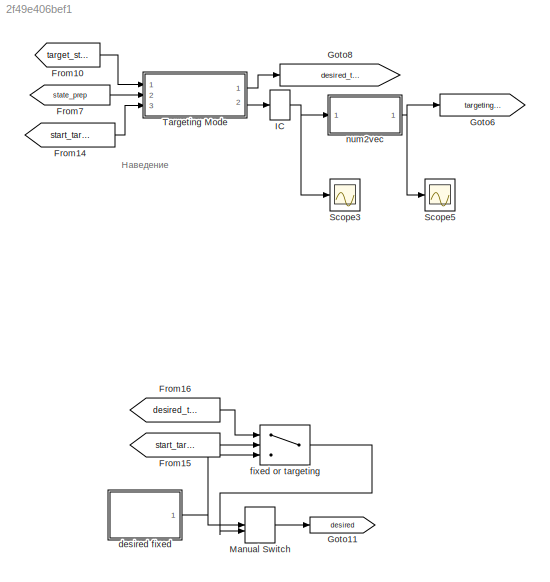
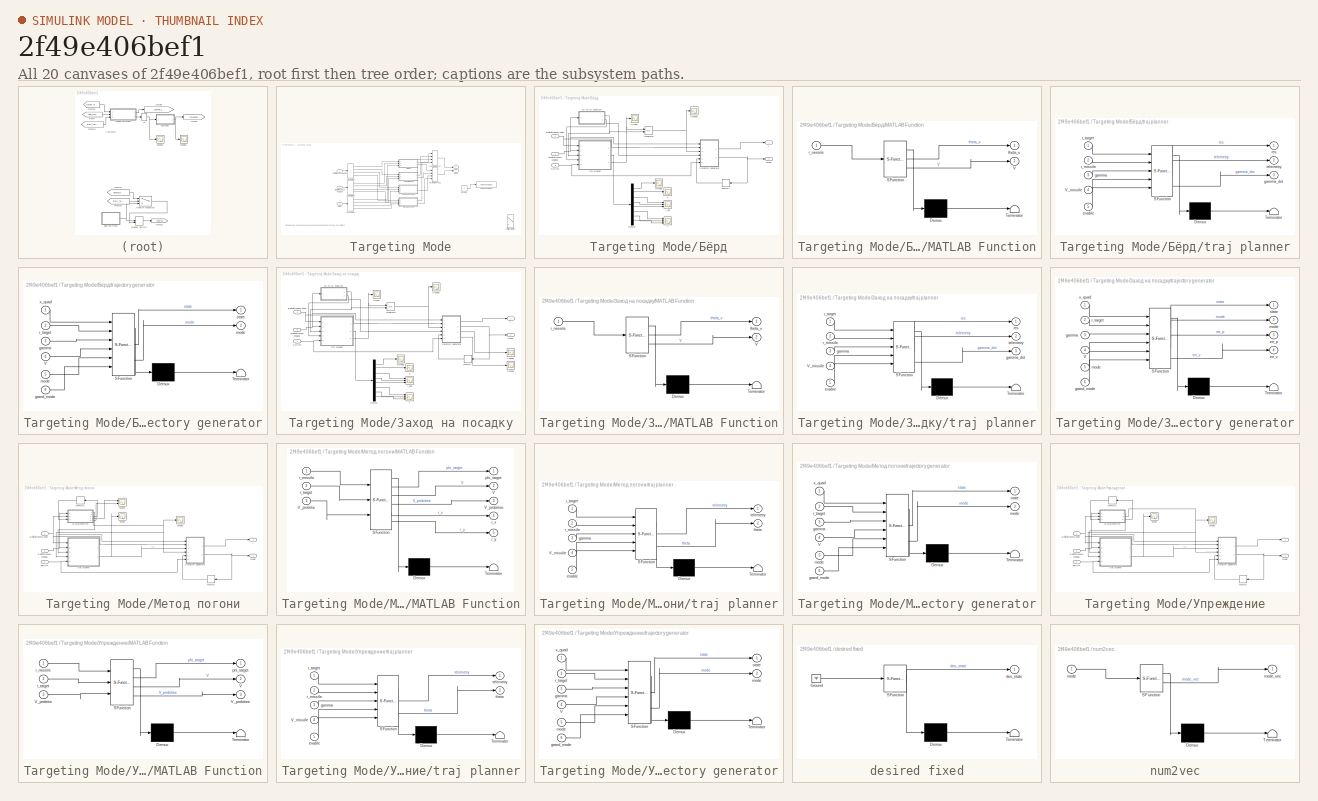
[diagram: thumbnail index - all 20 canvases of the model, root first then tree order]
MODEL slx_2f49e406bef1
KIND model
CONFIG AbsTol = auto
CONFIG EnableMultiTasking = off
CONFIG FixedStep = auto
CONFIG MaxStep = auto
CONFIG MinStep = auto
CONFIG RelTol = 1e-3
CONFIG SampleTimeConstraint = Unconstrained
CONFIG Solver = VariableStepAuto
CONFIG SolverName = VariableStepAuto
CONFIG StartTime = 0.0
CONFIG StopTime = 10.0
BLOCK [From] From10
  GotoTag = target_state
  IconDisplay = Tag and signal name
BLOCK [From] From14
  GotoTag = start_targeting
BLOCK [From] From15
  Commented = on
  GotoTag = start_targeting
BLOCK [From] From16
  Commented = on
  GotoTag = desired_targeting
BLOCK [From] From7
  GotoTag = state_prep
BLOCK [Goto] Goto11
  Commented = on
  GotoTag = desired
BLOCK [Goto] Goto6
  GotoTag = targeting_mode
  TagVisibility = global
BLOCK [Goto] Goto8
  GotoTag = desired_targeting
BLOCK [InitialCondition] IC
  Value = 0
BLOCK [ManualSwitch] Manual Switch
  Commented = on
BLOCK [Scope] Scope3
  Floating = off
  NumInputPorts = 1
  Ports = [1]
  ScopeSpecificationString = Simulink.scopes.TimeScopeBlockCfg('CurrentConfiguration', extmgr.ConfigurationSet(extmgr.Configuration('Core','General UI',true),extmgr.Configuration('Core','Source UI',true),extmgr.Configuration('Sources','WiredSimulink',true,'DataLoggingVariableName','ScopeData1'),extmgr.Configuration('Visuals','Time Domain',true,'SerializedDisplays',{struct('MinYLimReal','-0.75','MaxYLimReal','6.75','YLabelReal...<+1412ch>
BLOCK [Scope] Scope5
  Floating = off
  NumInputPorts = 1
  Ports = [1]
  ScopeSpecificationString = Simulink.scopes.TimeScopeBlockCfg('CurrentConfiguration', extmgr.ConfigurationSet(extmgr.Configuration('Core','General UI',true),extmgr.Configuration('Core','Source UI',true),extmgr.Configuration('Sources','WiredSimulink',true,'DataLoggingVariableName','ScopeData2'),extmgr.Configuration('Visuals','Time Domain',true,'SerializedDisplays',{struct('MinYLimReal','-0.375','MaxYLimReal','3.375','YLabelRe...<+1418ch>
BLOCK [SubSystem] Targeting Mode
  Ports = [3, 2]
  RequestExecContextInheritance = off
BLOCK [Constant] Targeting Mode/Constant
  Commented = on
  Value = 3
BLOCK [MultiPortSwitch] Targeting Mode/Multiport Switch
  Commented = on
  InputSameDT = off
  Inputs = 4
  Ports = [5, 1]
  SaturateOnIntegerOverflow = off
BLOCK [Inport] Targeting Mode/Switch
  Port = 3
BLOCK [ToWorkspace] Targeting Mode/To Workspace
  Commented = on
  FixptAsFi = on
  MaxDataPoints = inf
  Ports = [1]
  SampleTime = -1
  SaveFormat = Timeseries
  VariableName = targeting_method_select
BLOCK [VariantSink] Targeting Mode/Variant Sink
  Ports = [1, 4]
BLOCK [VariantSink] Targeting Mode/Variant Sink1
  Ports = [1, 4]
BLOCK [VariantSink] Targeting Mode/Variant Sink2
  Ports = [1, 4]
BLOCK [VariantSource] Targeting Mode/Variant Source
  Ports = [4, 1]
BLOCK [VariantSource] Targeting Mode/Variant Source1
  Ports = [4, 1]
BLOCK [Outport] Targeting Mode/mode
  Port = 2
BLOCK [Outport] Targeting Mode/y
BLOCK [SubSystem] Targeting Mode/Бёрд
  Ports = [3, 2]
  RequestExecContextInheritance = off
BLOCK [Demux] Targeting Mode/Бёрд/Demux
  Outputs = 8
  Ports = [1, 8]
BLOCK [Integrator] Targeting Mode/Бёрд/Integrator
  InitialConditionSource = external
  Ports = [2, 1]
BLOCK [SubSystem] Targeting Mode/Бёрд/MATLAB Function
  ErrorFcn = Stateflow.Translate.translate
  PermitHierarchicalResolution = ExplicitOnly
  Ports = [1, 2]
  RequestExecContextInheritance = off
  SFBlockType = MATLAB Function
  TreatAsAtomicUnit = on
BLOCK [Demux] Targeting Mode/Бёрд/MATLAB Function/ Demux 
  Outputs = 1
  Ports = [1, 1]
BLOCK [S-Function] Targeting Mode/Бёрд/MATLAB Function/ SFunction 
  EnableBusSupport = on
  FunctionName = sf_sfun
  PortCounts = [1 3]
  Ports = [1, 3]
  SFcnIsStateOwnerBlock = off
  SFunctionDeploymentMode = off
  Tag = Stateflow S-Function 12
BLOCK [Terminator] Targeting Mode/Бёрд/MATLAB Function/ Terminator 
BLOCK [Outport] Targeting Mode/Бёрд/MATLAB Function/V
  Port = 2
BLOCK [Inport] Targeting Mode/Бёрд/MATLAB Function/r_missile
BLOCK [Outport] Targeting Mode/Бёрд/MATLAB Function/theta_v
BLOCK [Memory] Targeting Mode/Бёрд/Memory
BLOCK [Scope] Targeting Mode/Бёрд/Omega
  Floating = off
  NumInputPorts = 1
  Ports = [1]
  ScopeSpecificationString = Simulink.scopes.TimeScopeBlockCfg('CurrentConfiguration', extmgr.ConfigurationSet(extmgr.Configuration('Core','General UI',true),extmgr.Configuration('Core','Source UI',true),extmgr.Configuration('Sources','WiredSimulink',true,'DataLoggingVariableName','ScopeData2'),extmgr.Configuration('Visuals','Time Domain',true,'SerializedDisplays',{struct('MinYLimReal','-0.46271','MaxYLimReal','0.24386','YLab...<+1434ch>
BLOCK [Scope] Targeting Mode/Бёрд/Scope
  Floating = off
  NumInputPorts = 1
  Ports = [1]
  ScopeSpecificationString = Simulink.scopes.TimeScopeBlockCfg('CurrentConfiguration', extmgr.ConfigurationSet(extmgr.Configuration('Core','General UI',true),extmgr.Configuration('Core','Source UI',true),extmgr.Configuration('Sources','WiredSimulink',true,'DataLoggingVariableName','ScopeData1'),extmgr.Configuration('Visuals','Time Domain',true,'SerializedDisplays',{struct('MinYLimReal','-0.77265','MaxYLimReal','0.21052','YLab...<+1426ch>
BLOCK [Scope] Targeting Mode/Бёрд/Scope5
  Floating = off
  NumInputPorts = 1
  Ports = [1]
  ScopeSpecificationString = Simulink.scopes.TimeScopeBlockCfg('CurrentConfiguration', extmgr.ConfigurationSet(extmgr.Configuration('Core','General UI',true),extmgr.Configuration('Core','Source UI',true),extmgr.Configuration('Sources','WiredSimulink',true,'DataLoggingVariableName','ScopeData8'),extmgr.Configuration('Visuals','Time Domain',true,'SerializedDisplays',{struct('MinYLimReal','-1.36049','MaxYLimReal','8.66917','YLab...<+1414ch>
BLOCK [Inport] Targeting Mode/Бёрд/Switch
  Port = 3
BLOCK [Scope] Targeting Mode/Бёрд/a
  Floating = off
  NumInputPorts = 1
  Ports = [1]
  ScopeSpecificationString = Simulink.scopes.TimeScopeBlockCfg('CurrentConfiguration', extmgr.ConfigurationSet(extmgr.Configuration('Core','General UI',true),extmgr.Configuration('Core','Source UI',true),extmgr.Configuration('Sources','WiredSimulink',true,'DataLoggingVariableName','ScopeData3'),extmgr.Configuration('Visuals','Time Domain',true,'SerializedDisplays',{struct('MinYLimReal','-7.58537','MaxYLimReal','29.06304','YLa...<+1445ch>
BLOCK [Scope] Targeting Mode/Бёрд/l
  Floating = off
  NumInputPorts = 3
  Ports = [3]
  ScopeSpecificationString = Simulink.scopes.TimeScopeBlockCfg('CurrentConfiguration', extmgr.ConfigurationSet(extmgr.Configuration('Core','General UI',true),extmgr.Configuration('Core','Source UI',true),extmgr.Configuration('Sources','WiredSimulink',true,'DataLoggingVariableName','ScopeData5'),extmgr.Configuration('Visuals','Time Domain',true,'SerializedDisplays',{struct('MinYLimReal','-47.99961','MaxYLimReal','131.98264','Y...<+1464ch>
BLOCK [Scope] Targeting Mode/Бёрд/l_dot
  Floating = off
  NumInputPorts = 3
  Ports = [3]
  ScopeSpecificationString = Simulink.scopes.TimeScopeBlockCfg('CurrentConfiguration', extmgr.ConfigurationSet(extmgr.Configuration('Core','General UI',true),extmgr.Configuration('Core','Source UI',true),extmgr.Configuration('Sources','WiredSimulink',true,'DataLoggingVariableName','ScopeData4'),extmgr.Configuration('Visuals','Time Domain',true,'SerializedDisplays',{struct('MinYLimReal','-12.39562','MaxYLimReal','8.73266','YLa...<+1458ch>
BLOCK [Outport] Targeting Mode/Бёрд/mode
  Port = 2
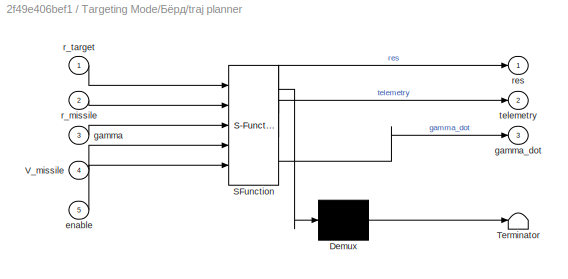
BLOCK [SubSystem] Targeting Mode/Бёрд/traj planner
  ErrorFcn = Stateflow.Translate.translate
  PermitHierarchicalResolution = ExplicitOnly
  Ports = [5, 3]
  RequestExecContextInheritance = off
  SFBlockType = MATLAB Function
  TreatAsAtomicUnit = on
BLOCK [Demux] Targeting Mode/Бёрд/traj planner/ Demux 
  Outputs = 1
  Ports = [1, 1]
BLOCK [S-Function] Targeting Mode/Бёрд/traj planner/ SFunction 
  EnableBusSupport = on
  FunctionName = sf_sfun
  PortCounts = [5 4]
  Ports = [5, 4]
  SFcnIsStateOwnerBlock = off
  SFunctionDeploymentMode = off
  Tag = Stateflow S-Function 14
BLOCK [Terminator] Targeting Mode/Бёрд/traj planner/ Terminator 
BLOCK [Inport] Targeting Mode/Бёрд/traj planner/V_missile
  Port = 4
BLOCK [Inport] Targeting Mode/Бёрд/traj planner/enable
  Port = 5
BLOCK [Inport] Targeting Mode/Бёрд/traj planner/gamma
  Port = 3
BLOCK [Outport] Targeting Mode/Бёрд/traj planner/gamma_dot
  Port = 3
BLOCK [Inport] Targeting Mode/Бёрд/traj planner/r_missile
  Port = 2
BLOCK [Inport] Targeting Mode/Бёрд/traj planner/r_target
BLOCK [Outport] Targeting Mode/Бёрд/traj planner/res
BLOCK [Outport] Targeting Mode/Бёрд/traj planner/telemetry
  Port = 2
BLOCK [SubSystem] Targeting Mode/Бёрд/trajectory generator
  ErrorFcn = Stateflow.Translate.translate
  PermitHierarchicalResolution = ExplicitOnly
  Ports = [6, 2]
  RequestExecContextInheritance = off
  SFBlockType = MATLAB Function
  TreatAsAtomicUnit = on
BLOCK [Demux] Targeting Mode/Бёрд/trajectory generator/ Demux 
  Outputs = 1
  Ports = [1, 1]
BLOCK [S-Function] Targeting Mode/Бёрд/trajectory generator/ SFunction 
  EnableBusSupport = on
  FunctionName = sf_sfun
  Parameters = MAV
  PortCounts = [6 3]
  Ports = [6, 3]
  SFcnIsStateOwnerBlock = off
  SFunctionDeploymentMode = off
  Tag = Stateflow S-Function 15
BLOCK [Terminator] Targeting Mode/Бёрд/trajectory generator/ Terminator 
BLOCK [Inport] Targeting Mode/Бёрд/trajectory generator/V
  Port = 4
BLOCK [Inport] Targeting Mode/Бёрд/trajectory generator/gamma
  Port = 3
BLOCK [Inport] Targeting Mode/Бёрд/trajectory generator/grand_mode
  Port = 6
BLOCK [Outport] Targeting Mode/Бёрд/trajectory generator/mode
  Port = 2
BLOCK [Inport] Targeting Mode/Бёрд/trajectory generator/mode 
  Port = 5
BLOCK [Inport] Targeting Mode/Бёрд/trajectory generator/r_target
  Port = 2
BLOCK [Outport] Targeting Mode/Бёрд/trajectory generator/state
BLOCK [Inport] Targeting Mode/Бёрд/trajectory generator/x_quad
BLOCK [Outport] Targeting Mode/Бёрд/y
BLOCK [Inport] Targeting Mode/Бёрд/Диффурочки квадра
  Port = 2
BLOCK [Inport] Targeting Mode/Бёрд/Диффурочки цели 
BLOCK [Inport] Targeting Mode/Диффурочки квадра
  Port = 2
BLOCK [Inport] Targeting Mode/Диффурочки цели 
BLOCK [SubSystem] Targeting Mode/Заход на посадку
  Ports = [3, 2]
  RequestExecContextInheritance = off
BLOCK [Demux] Targeting Mode/Заход на посадку/Demux
  Outputs = 8
  Ports = [1, 8]
BLOCK [Integrator] Targeting Mode/Заход на посадку/Integrator
  InitialConditionSource = external
  Ports = [2, 1]
BLOCK [SubSystem] Targeting Mode/Заход на посадку/MATLAB Function
  ErrorFcn = Stateflow.Translate.translate
  PermitHierarchicalResolution = ExplicitOnly
  Ports = [1, 2]
  RequestExecContextInheritance = off
  SFBlockType = MATLAB Function
  TreatAsAtomicUnit = on
BLOCK [Demux] Targeting Mode/Заход на посадку/MATLAB Function/ Demux 
  Outputs = 1
  Ports = [1, 1]
BLOCK [S-Function] Targeting Mode/Заход на посадку/MATLAB Function/ SFunction 
  EnableBusSupport = on
  FunctionName = sf_sfun
  PortCounts = [1 3]
  Ports = [1, 3]
  SFcnIsStateOwnerBlock = off
  SFunctionDeploymentMode = off
  Tag = Stateflow S-Function 7
BLOCK [Terminator] Targeting Mode/Заход на посадку/MATLAB Function/ Terminator 
BLOCK [Outport] Targeting Mode/Заход на посадку/MATLAB Function/V
  Port = 2
BLOCK [Inport] Targeting Mode/Заход на посадку/MATLAB Function/r_missile
BLOCK [Outport] Targeting Mode/Заход на посадку/MATLAB Function/theta_v
BLOCK [Memory] Targeting Mode/Заход на посадку/Memory
BLOCK [Scope] Targeting Mode/Заход на посадку/Omega
  Floating = off
  NumInputPorts = 1
  Ports = [1]
  ScopeSpecificationString = Simulink.scopes.TimeScopeBlockCfg('CurrentConfiguration', extmgr.ConfigurationSet(extmgr.Configuration('Core','General UI',true),extmgr.Configuration('Core','Source UI',true),extmgr.Configuration('Sources','WiredSimulink',true,'DataLoggingVariableName','ScopeData2'),extmgr.Configuration('Visuals','Time Domain',true,'SerializedDisplays',{struct('MinYLimReal','-0.46271','MaxYLimReal','0.24386','YLab...<+1434ch>
BLOCK [Scope] Targeting Mode/Заход на посадку/Scope
  Floating = off
  NumInputPorts = 1
  Ports = [1]
  ScopeSpecificationString = Simulink.scopes.TimeScopeBlockCfg('CurrentConfiguration', extmgr.ConfigurationSet(extmgr.Configuration('Core','General UI',true),extmgr.Configuration('Core','Source UI',true),extmgr.Configuration('Sources','WiredSimulink',true,'DataLoggingVariableName','ScopeData1'),extmgr.Configuration('Visuals','Time Domain',true,'SerializedDisplays',{struct('MinYLimReal','-10.92265','MaxYLimReal','32.18737','YL...<+1455ch>
BLOCK [Scope] Targeting Mode/Заход на посадку/Scope1
  Floating = off
  NumInputPorts = 1
  Ports = [1]
  ScopeSpecificationString = Simulink.scopes.TimeScopeBlockCfg('CurrentConfiguration', extmgr.ConfigurationSet(extmgr.Configuration('Core','General UI',true),extmgr.Configuration('Core','Source UI',true),extmgr.Configuration('Sources','WiredSimulink',true,'DataLoggingVariableName','ScopeData10'),extmgr.Configuration('Visuals','Time Domain',true,'SerializedDisplays',{struct('MinYLimReal','-46.92461','MaxYLimReal','122.30771','...<+1528ch>
BLOCK [Scope] Targeting Mode/Заход на посадку/Scope2
  Floating = off
  NumInputPorts = 1
  Ports = [1]
  ScopeSpecificationString = Simulink.scopes.TimeScopeBlockCfg('CurrentConfiguration', extmgr.ConfigurationSet(extmgr.Configuration('Core','General UI',true),extmgr.Configuration('Core','Source UI',true),extmgr.Configuration('Sources','WiredSimulink',true,'DataLoggingVariableName','ScopeData11'),extmgr.Configuration('Visuals','Time Domain',true,'SerializedDisplays',{struct('MinYLimReal','-12.39562','MaxYLimReal','8.73266','YL...<+1522ch>
BLOCK [Scope] Targeting Mode/Заход на посадку/Scope5
  Floating = off
  NumInputPorts = 1
  Ports = [1]
  ScopeSpecificationString = Simulink.scopes.TimeScopeBlockCfg('CurrentConfiguration', extmgr.ConfigurationSet(extmgr.Configuration('Core','General UI',true),extmgr.Configuration('Core','Source UI',true),extmgr.Configuration('Sources','WiredSimulink',true,'DataLoggingVariableName','ScopeData8'),extmgr.Configuration('Visuals','Time Domain',true,'SerializedDisplays',{struct('MinYLimReal','-1.45131','MaxYLimReal','10.04305','YLa...<+1441ch>
BLOCK [Inport] Targeting Mode/Заход на посадку/Switch
  Port = 3
BLOCK [Scope] Targeting Mode/Заход на посадку/a
  Floating = off
  NumInputPorts = 1
  Ports = [1]
  ScopeSpecificationString = Simulink.scopes.TimeScopeBlockCfg('CurrentConfiguration', extmgr.ConfigurationSet(extmgr.Configuration('Core','General UI',true),extmgr.Configuration('Core','Source UI',true),extmgr.Configuration('Sources','WiredSimulink',true,'DataLoggingVariableName','ScopeData3'),extmgr.Configuration('Visuals','Time Domain',true,'SerializedDisplays',{struct('MinYLimReal','-7.58537','MaxYLimReal','29.06304','YLa...<+1445ch>
BLOCK [Scope] Targeting Mode/Заход на посадку/l
  Floating = off
  NumInputPorts = 3
  Ports = [3]
  ScopeSpecificationString = Simulink.scopes.TimeScopeBlockCfg('CurrentConfiguration', extmgr.ConfigurationSet(extmgr.Configuration('Core','General UI',true),extmgr.Configuration('Core','Source UI',true),extmgr.Configuration('Sources','WiredSimulink',true,'DataLoggingVariableName','ScopeData5'),extmgr.Configuration('Visuals','Time Domain',true,'SerializedDisplays',{struct('MinYLimReal','-46.81137','MaxYLimReal','131.28853','Y...<+1464ch>
BLOCK [Scope] Targeting Mode/Заход на посадку/l_dot
  Floating = off
  NumInputPorts = 3
  Ports = [3]
  ScopeSpecificationString = Simulink.scopes.TimeScopeBlockCfg('CurrentConfiguration', extmgr.ConfigurationSet(extmgr.Configuration('Core','General UI',true),extmgr.Configuration('Core','Source UI',true),extmgr.Configuration('Sources','WiredSimulink',true,'DataLoggingVariableName','ScopeData4'),extmgr.Configuration('Visuals','Time Domain',true,'SerializedDisplays',{struct('MinYLimReal','-12.39562','MaxYLimReal','8.73266','YLa...<+1458ch>
BLOCK [Outport] Targeting Mode/Заход на посадку/mode
  Port = 2
BLOCK [SubSystem] Targeting Mode/Заход на посадку/traj planner
  ErrorFcn = Stateflow.Translate.translate
  PermitHierarchicalResolution = ExplicitOnly
  Ports = [5, 3]
  RequestExecContextInheritance = off
  SFBlockType = MATLAB Function
  TreatAsAtomicUnit = on
BLOCK [Demux] Targeting Mode/Заход на посадку/traj planner/ Demux 
  Outputs = 1
  Ports = [1, 1]
BLOCK [S-Function] Targeting Mode/Заход на посадку/traj planner/ SFunction 
  EnableBusSupport = on
  FunctionName = sf_sfun
  PortCounts = [5 4]
  Ports = [5, 4]
  SFcnIsStateOwnerBlock = off
  SFunctionDeploymentMode = off
  Tag = Stateflow S-Function 9
BLOCK [Terminator] Targeting Mode/Заход на посадку/traj planner/ Terminator 
BLOCK [Inport] Targeting Mode/Заход на посадку/traj planner/V_missile
  Port = 4
BLOCK [Inport] Targeting Mode/Заход на посадку/traj planner/enable
  Port = 5
BLOCK [Inport] Targeting Mode/Заход на посадку/traj planner/gamma
  Port = 3
BLOCK [Outport] Targeting Mode/Заход на посадку/traj planner/gamma_dot
  Port = 3
BLOCK [Inport] Targeting Mode/Заход на посадку/traj planner/r_missile
  Port = 2
BLOCK [Inport] Targeting Mode/Заход на посадку/traj planner/r_target
BLOCK [Outport] Targeting Mode/Заход на посадку/traj planner/res
BLOCK [Outport] Targeting Mode/Заход на посадку/traj planner/telemetry
  Port = 2
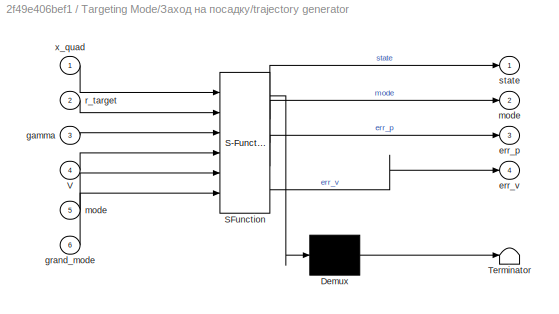
BLOCK [SubSystem] Targeting Mode/Заход на посадку/trajectory generator
  ErrorFcn = Stateflow.Translate.translate
  PermitHierarchicalResolution = ExplicitOnly
  Ports = [6, 4]
  RequestExecContextInheritance = off
  SFBlockType = MATLAB Function
  TreatAsAtomicUnit = on
BLOCK [Demux] Targeting Mode/Заход на посадку/trajectory generator/ Demux 
  Outputs = 1
  Ports = [1, 1]
BLOCK [S-Function] Targeting Mode/Заход на посадку/trajectory generator/ SFunction 
  EnableBusSupport = on
  FunctionName = sf_sfun
  Parameters = MAV
  PortCounts = [6 5]
  Ports = [6, 5]
  SFcnIsStateOwnerBlock = off
  SFunctionDeploymentMode = off
  Tag = Stateflow S-Function 10
BLOCK [Terminator] Targeting Mode/Заход на посадку/trajectory generator/ Terminator 
BLOCK [Inport] Targeting Mode/Заход на посадку/trajectory generator/V
  Port = 4
BLOCK [Outport] Targeting Mode/Заход на посадку/trajectory generator/err_p
  Port = 3
BLOCK [Outport] Targeting Mode/Заход на посадку/trajectory generator/err_v
  Port = 4
BLOCK [Inport] Targeting Mode/Заход на посадку/trajectory generator/gamma
  Port = 3
BLOCK [Inport] Targeting Mode/Заход на посадку/trajectory generator/grand_mode
  Port = 6
BLOCK [Outport] Targeting Mode/Заход на посадку/trajectory generator/mode
  Port = 2
BLOCK [Inport] Targeting Mode/Заход на посадку/trajectory generator/mode 
  Port = 5
BLOCK [Inport] Targeting Mode/Заход на посадку/trajectory generator/r_target
  Port = 2
BLOCK [Outport] Targeting Mode/Заход на посадку/trajectory generator/state
BLOCK [Inport] Targeting Mode/Заход на посадку/trajectory generator/x_quad
BLOCK [Outport] Targeting Mode/Заход на посадку/y
BLOCK [Inport] Targeting Mode/Заход на посадку/Диффурочки квадра
  Port = 2
BLOCK [Inport] Targeting Mode/Заход на посадку/Диффурочки цели 
BLOCK [SubSystem] Targeting Mode/Метод погони
  Ports = [3, 2]
  RequestExecContextInheritance = off
BLOCK [SubSystem] Targeting Mode/Метод погони/MATLAB Function
  ErrorFcn = Stateflow.Translate.translate
  PermitHierarchicalResolution = ExplicitOnly
  Ports = [3, 5]
  RequestExecContextInheritance = off
  SFBlockType = MATLAB Function
  TreatAsAtomicUnit = on
BLOCK [Demux] Targeting Mode/Метод погони/MATLAB Function/ Demux 
  Outputs = 1
  Ports = [1, 1]
BLOCK [S-Function] Targeting Mode/Метод погони/MATLAB Function/ SFunction 
  EnableBusSupport = on
  FunctionName = sf_sfun
  PortCounts = [3 6]
  Ports = [3, 6]
  SFcnIsStateOwnerBlock = off
  SFunctionDeploymentMode = off
  Tag = Stateflow S-Function 8
BLOCK [Terminator] Targeting Mode/Метод погони/MATLAB Function/ Terminator 
BLOCK [Outport] Targeting Mode/Метод погони/MATLAB Function/V
  Port = 2
BLOCK [Inport] Targeting Mode/Метод погони/MATLAB Function/V_probitia
  Port = 3
BLOCK [Outport] Targeting Mode/Метод погони/MATLAB Function/V_probitiee
  Port = 3
BLOCK [Outport] Targeting Mode/Метод погони/MATLAB Function/phi_target
BLOCK [Inport] Targeting Mode/Метод погони/MATLAB Function/r_missile
BLOCK [Inport] Targeting Mode/Метод погони/MATLAB Function/r_target
  Port = 2
BLOCK [Outport] Targeting Mode/Метод погони/MATLAB Function/r_x
  Port = 4
BLOCK [Outport] Targeting Mode/Метод погони/MATLAB Function/r_y
  Port = 5
BLOCK [Memory] Targeting Mode/Метод погони/Memory
BLOCK [Memory] Targeting Mode/Метод погони/Memory1
BLOCK [Scope] Targeting Mode/Метод погони/Scope
  Floating = off
  NumInputPorts = 1
  Ports = [1]
  ScopeSpecificationString = Simulink.scopes.TimeScopeBlockCfg('CurrentConfiguration', extmgr.ConfigurationSet(extmgr.Configuration('Core','General UI',true),extmgr.Configuration('Core','Source UI',true),extmgr.Configuration('Sources','WiredSimulink',true,'DataLoggingVariableName','ScopeData1'),extmgr.Configuration('Visuals','Time Domain',true,'SerializedDisplays',{struct('MinYLimReal','-3.51285','MaxYLimReal','0.39005','YLab...<+1436ch>
BLOCK [Scope] Targeting Mode/Метод погони/Scope1
  Floating = off
  NumInputPorts = 1
  Ports = [1]
  ScopeSpecificationString = Simulink.scopes.TimeScopeBlockCfg('CurrentConfiguration', extmgr.ConfigurationSet(extmgr.Configuration('Core','General UI',true),extmgr.Configuration('Core','Source UI',true),extmgr.Configuration('Sources','WiredSimulink',true,'DataLoggingVariableName','ScopeData2'),extmgr.Configuration('Visuals','Time Domain',true,'SerializedDisplays',{struct('MinYLimReal','-1.24969','MaxYLimReal','11.24719','YLa...<+1448ch>
BLOCK [Scope] Targeting Mode/Метод погони/Scope2
  Floating = off
  NumInputPorts = 2
  Ports = [2]
  ScopeSpecificationString = Simulink.scopes.TimeScopeBlockCfg('CurrentConfiguration', extmgr.ConfigurationSet(extmgr.Configuration('Core','General UI',true),extmgr.Configuration('Core','Source UI',true),extmgr.Configuration('Sources','WiredSimulink',true,'DataLoggingVariableName','ScopeData3'),extmgr.Configuration('Visuals','Time Domain',true,'SerializedDisplays',{struct('MinYLimReal','-45.05386','MaxYLimReal','105.48478','Y...<+1484ch>
BLOCK [Inport] Targeting Mode/Метод погони/Switch
  Port = 3
BLOCK [Outport] Targeting Mode/Метод погони/mode
  Port = 2
BLOCK [SubSystem] Targeting Mode/Метод погони/traj planner
  ErrorFcn = Stateflow.Translate.translate
  PermitHierarchicalResolution = ExplicitOnly
  Ports = [5, 2]
  RequestExecContextInheritance = off
  SFBlockType = MATLAB Function
  TreatAsAtomicUnit = on
BLOCK [Demux] Targeting Mode/Метод погони/traj planner/ Demux 
  Outputs = 1
  Ports = [1, 1]
BLOCK [S-Function] Targeting Mode/Метод погони/traj planner/ SFunction 
  EnableBusSupport = on
  FunctionName = sf_sfun
  PortCounts = [5 3]
  Ports = [5, 3]
  SFcnIsStateOwnerBlock = off
  SFunctionDeploymentMode = off
  Tag = Stateflow S-Function 13
BLOCK [Terminator] Targeting Mode/Метод погони/traj planner/ Terminator 
BLOCK [Inport] Targeting Mode/Метод погони/traj planner/V_missile
  Port = 4
BLOCK [Inport] Targeting Mode/Метод погони/traj planner/enable
  Port = 5
BLOCK [Inport] Targeting Mode/Метод погони/traj planner/gamma
  Port = 3
BLOCK [Inport] Targeting Mode/Метод погони/traj planner/r_missile
  Port = 2
BLOCK [Inport] Targeting Mode/Метод погони/traj planner/r_target
BLOCK [Outport] Targeting Mode/Метод погони/traj planner/telemetry
BLOCK [Outport] Targeting Mode/Метод погони/traj planner/theta
  Port = 2
BLOCK [SubSystem] Targeting Mode/Метод погони/trajectory generator
  ErrorFcn = Stateflow.Translate.translate
  PermitHierarchicalResolution = ExplicitOnly
  Ports = [6, 2]
  RequestExecContextInheritance = off
  SFBlockType = MATLAB Function
  TreatAsAtomicUnit = on
BLOCK [Demux] Targeting Mode/Метод погони/trajectory generator/ Demux 
  Outputs = 1
  Ports = [1, 1]
BLOCK [S-Function] Targeting Mode/Метод погони/trajectory generator/ SFunction 
  EnableBusSupport = on
  FunctionName = sf_sfun
  Parameters = MAV
  PortCounts = [6 3]
  Ports = [6, 3]
  SFcnIsStateOwnerBlock = off
  SFunctionDeploymentMode = off
  Tag = Stateflow S-Function 17
BLOCK [Terminator] Targeting Mode/Метод погони/trajectory generator/ Terminator 
BLOCK [Inport] Targeting Mode/Метод погони/trajectory generator/V
  Port = 4
BLOCK [Inport] Targeting Mode/Метод погони/trajectory generator/gamma
  Port = 3
BLOCK [Inport] Targeting Mode/Метод погони/trajectory generator/grand_mode
  Port = 6
BLOCK [Outport] Targeting Mode/Метод погони/trajectory generator/mode
  Port = 2
BLOCK [Inport] Targeting Mode/Метод погони/trajectory generator/mode 
  Port = 5
BLOCK [Inport] Targeting Mode/Метод погони/trajectory generator/r_target
  Port = 2
BLOCK [Outport] Targeting Mode/Метод погони/trajectory generator/state
BLOCK [Inport] Targeting Mode/Метод погони/trajectory generator/x_quad
BLOCK [Outport] Targeting Mode/Метод погони/y
BLOCK [Inport] Targeting Mode/Метод погони/Диффурочки квадра
  Port = 2
BLOCK [Inport] Targeting Mode/Метод погони/Диффурочки цели 
BLOCK [SubSystem] Targeting Mode/Упреждение
  Ports = [3, 2]
  RequestExecContextInheritance = off
BLOCK [SubSystem] Targeting Mode/Упреждение/MATLAB Function
  ErrorFcn = Stateflow.Translate.translate
  PermitHierarchicalResolution = ExplicitOnly
  Ports = [3, 3]
  RequestExecContextInheritance = off
  SFBlockType = MATLAB Function
  TreatAsAtomicUnit = on
BLOCK [Demux] Targeting Mode/Упреждение/MATLAB Function/ Demux 
  Outputs = 1
  Ports = [1, 1]
BLOCK [S-Function] Targeting Mode/Упреждение/MATLAB Function/ SFunction 
  EnableBusSupport = on
  FunctionName = sf_sfun
  PortCounts = [3 4]
  Ports = [3, 4]
  SFcnIsStateOwnerBlock = off
  SFunctionDeploymentMode = off
  Tag = Stateflow S-Function 16
BLOCK [Terminator] Targeting Mode/Упреждение/MATLAB Function/ Terminator 
BLOCK [Outport] Targeting Mode/Упреждение/MATLAB Function/V
  Port = 2
BLOCK [Inport] Targeting Mode/Упреждение/MATLAB Function/V_probitia
  Port = 3
BLOCK [Outport] Targeting Mode/Упреждение/MATLAB Function/V_probitiee
  Port = 3
BLOCK [Outport] Targeting Mode/Упреждение/MATLAB Function/phi_target
BLOCK [Inport] Targeting Mode/Упреждение/MATLAB Function/r_missile
BLOCK [Inport] Targeting Mode/Упреждение/MATLAB Function/r_target
  Port = 2
BLOCK [Memory] Targeting Mode/Упреждение/Memory
BLOCK [Memory] Targeting Mode/Упреждение/Memory1
BLOCK [Scope] Targeting Mode/Упреждение/Scope
  Floating = off
  NumInputPorts = 1
  Ports = [1]
  ScopeSpecificationString = Simulink.scopes.TimeScopeBlockCfg('CurrentConfiguration', extmgr.ConfigurationSet(extmgr.Configuration('Core','General UI',true),extmgr.Configuration('Core','Source UI',true),extmgr.Configuration('Sources','WiredSimulink',true,'DataLoggingVariableName','ScopeData1'),extmgr.Configuration('Visuals','Time Domain',true,'SerializedDisplays',{struct('MinYLimReal','-0.43311','MaxYLimReal','0.43485','YLab...<+1430ch>
BLOCK [Scope] Targeting Mode/Упреждение/Scope1
  Floating = off
  NumInputPorts = 1
  Ports = [1]
  ScopeSpecificationString = Simulink.scopes.TimeScopeBlockCfg('CurrentConfiguration', extmgr.ConfigurationSet(extmgr.Configuration('Core','General UI',true),extmgr.Configuration('Core','Source UI',true),extmgr.Configuration('Sources','WiredSimulink',true,'DataLoggingVariableName','ScopeData9'),extmgr.Configuration('Visuals','Time Domain',true,'SerializedDisplays',{struct('MinYLimReal','-1.24969','MaxYLimReal','11.24719','YLa...<+1448ch>
BLOCK [Inport] Targeting Mode/Упреждение/Switch
  Port = 3
BLOCK [Outport] Targeting Mode/Упреждение/mode
  Port = 2
BLOCK [SubSystem] Targeting Mode/Упреждение/traj planner
  ErrorFcn = Stateflow.Translate.translate
  PermitHierarchicalResolution = ExplicitOnly
  Ports = [5, 2]
  RequestExecContextInheritance = off
  SFBlockType = MATLAB Function
  TreatAsAtomicUnit = on
BLOCK [Demux] Targeting Mode/Упреждение/traj planner/ Demux 
  Outputs = 1
  Ports = [1, 1]
BLOCK [S-Function] Targeting Mode/Упреждение/traj planner/ SFunction 
  EnableBusSupport = on
  FunctionName = sf_sfun
  PortCounts = [5 3]
  Ports = [5, 3]
  SFcnIsStateOwnerBlock = off
  SFunctionDeploymentMode = off
  Tag = Stateflow S-Function 18
BLOCK [Terminator] Targeting Mode/Упреждение/traj planner/ Terminator 
BLOCK [Inport] Targeting Mode/Упреждение/traj planner/V_missile
  Port = 4
BLOCK [Inport] Targeting Mode/Упреждение/traj planner/enable
  Port = 5
BLOCK [Inport] Targeting Mode/Упреждение/traj planner/gamma
  Port = 3
BLOCK [Inport] Targeting Mode/Упреждение/traj planner/r_missile
  Port = 2
BLOCK [Inport] Targeting Mode/Упреждение/traj planner/r_target
BLOCK [Outport] Targeting Mode/Упреждение/traj planner/telemetry
BLOCK [Outport] Targeting Mode/Упреждение/traj planner/theta
  Port = 2
BLOCK [SubSystem] Targeting Mode/Упреждение/trajectory generator
  ErrorFcn = Stateflow.Translate.translate
  PermitHierarchicalResolution = ExplicitOnly
  Ports = [6, 2]
  RequestExecContextInheritance = off
  SFBlockType = MATLAB Function
  TreatAsAtomicUnit = on
BLOCK [Demux] Targeting Mode/Упреждение/trajectory generator/ Demux 
  Outputs = 1
  Ports = [1, 1]
BLOCK [S-Function] Targeting Mode/Упреждение/trajectory generator/ SFunction 
  EnableBusSupport = on
  FunctionName = sf_sfun
  Parameters = MAV
  PortCounts = [6 3]
  Ports = [6, 3]
  SFcnIsStateOwnerBlock = off
  SFunctionDeploymentMode = off
  Tag = Stateflow S-Function 19
BLOCK [Terminator] Targeting Mode/Упреждение/trajectory generator/ Terminator 
BLOCK [Inport] Targeting Mode/Упреждение/trajectory generator/V
  Port = 4
BLOCK [Inport] Targeting Mode/Упреждение/trajectory generator/gamma
  Port = 3
BLOCK [Inport] Targeting Mode/Упреждение/trajectory generator/grand_mode
  Port = 6
BLOCK [Outport] Targeting Mode/Упреждение/trajectory generator/mode
  Port = 2
BLOCK [Inport] Targeting Mode/Упреждение/trajectory generator/mode 
  Port = 5
BLOCK [Inport] Targeting Mode/Упреждение/trajectory generator/r_target
  Port = 2
BLOCK [Outport] Targeting Mode/Упреждение/trajectory generator/state
BLOCK [Inport] Targeting Mode/Упреждение/trajectory generator/x_quad
BLOCK [Outport] Targeting Mode/Упреждение/y
BLOCK [Inport] Targeting Mode/Упреждение/Диффурочки квадра
  Port = 2
BLOCK [Inport] Targeting Mode/Упреждение/Диффурочки цели 
BLOCK [SubSystem] desired fixed
  Commented = on
  ErrorFcn = Stateflow.Translate.translate
  PermitHierarchicalResolution = ExplicitOnly
  Ports = [0, 1]
  RequestExecContextInheritance = off
  SFBlockType = MATLAB Function
  TreatAsAtomicUnit = on
BLOCK [Demux] desired fixed/ Demux 
  Outputs = 1
  Ports = [1, 1]
BLOCK [Ground] desired fixed/ Ground 
BLOCK [S-Function] desired fixed/ SFunction 
  EnableBusSupport = on
  FunctionName = sf_sfun
  Parameters = MAV
  PortCounts = [1 2]
  Ports = [1, 2]
  SFcnIsStateOwnerBlock = off
  SFunctionDeploymentMode = off
  Tag = Stateflow S-Function 6
BLOCK [Terminator] desired fixed/ Terminator 
BLOCK [Outport] desired fixed/des_state
BLOCK [Switch] fixed or targeting
  Commented = on
  Criteria = u2 > Threshold
  InputSameDT = off
  SaturateOnIntegerOverflow = off
BLOCK [SubSystem] num2vec
  ErrorFcn = Stateflow.Translate.translate
  PermitHierarchicalResolution = ExplicitOnly
  Ports = [1, 1]
  RequestExecContextInheritance = off
  SFBlockType = MATLAB Function
  TreatAsAtomicUnit = on
BLOCK [Demux] num2vec/ Demux 
  Outputs = 1
  Ports = [1, 1]
BLOCK [S-Function] num2vec/ SFunction 
  EnableBusSupport = on
  FunctionName = sf_sfun
  PortCounts = [1 2]
  Ports = [1, 2]
  SFcnIsStateOwnerBlock = off
  SFunctionDeploymentMode = off
  Tag = Stateflow S-Function 1
BLOCK [Terminator] num2vec/ Terminator 
BLOCK [Inport] num2vec/mode
BLOCK [Outport] num2vec/mode_vec
ANNOTATION (root): Наведение
ANNOTATION Targeting Mode: Переменная-переключатель инициализирована в aerosonde_parameters
LINE From10:1 -> Targeting Mode:1
LINE From14:1 -> Targeting Mode:3
LINE From15:1 -> fixed or targeting:2
LINE From16:1 -> fixed or targeting:1
LINE From7:1 -> Targeting Mode:2
NET IC:1 -> Scope3:1, num2vec:1
LINE Manual Switch:1 -> Goto11:1
LINE Targeting Mode/Constant:1 -> Targeting Mode/To Workspace:1
LINE Targeting Mode/Switch:1 -> Targeting Mode/Variant Sink1:1
LINE Targeting Mode/Variant Sink1:1 -> Targeting Mode/Бёрд:3
LINE Targeting Mode/Variant Sink1:2 -> Targeting Mode/Упреждение:3
LINE Targeting Mode/Variant Sink1:3 -> Targeting Mode/Заход на посадку:3
LINE Targeting Mode/Variant Sink1:4 -> Targeting Mode/Метод погони:3
LINE Targeting Mode/Variant Sink2:1 -> Targeting Mode/Бёрд:2
LINE Targeting Mode/Variant Sink2:2 -> Targeting Mode/Упреждение:2
LINE Targeting Mode/Variant Sink2:3 -> Targeting Mode/Заход на посадку:2
LINE Targeting Mode/Variant Sink2:4 -> Targeting Mode/Метод погони:2
LINE Targeting Mode/Variant Sink:1 -> Targeting Mode/Бёрд:1
LINE Targeting Mode/Variant Sink:2 -> Targeting Mode/Упреждение:1
LINE Targeting Mode/Variant Sink:3 -> Targeting Mode/Заход на посадку:1
LINE Targeting Mode/Variant Sink:4 -> Targeting Mode/Метод погони:1
LINE Targeting Mode/Variant Source1:1 -> Targeting Mode/mode:1
LINE Targeting Mode/Variant Source:1 -> Targeting Mode/y:1
LINE Targeting Mode/Бёрд/Demux:1 -> Targeting Mode/Бёрд/Omega:1
LINE Targeting Mode/Бёрд/Demux:2 -> Targeting Mode/Бёрд/a:1
LINE Targeting Mode/Бёрд/Demux:3 -> Targeting Mode/Бёрд/l_dot:1
LINE Targeting Mode/Бёрд/Demux:4 -> Targeting Mode/Бёрд/l_dot:2
LINE Targeting Mode/Бёрд/Demux:5 -> Targeting Mode/Бёрд/l_dot:3
LINE Targeting Mode/Бёрд/Demux:6 -> Targeting Mode/Бёрд/l:1
LINE Targeting Mode/Бёрд/Demux:7 -> Targeting Mode/Бёрд/l:2
LINE Targeting Mode/Бёрд/Demux:8 -> Targeting Mode/Бёрд/l:3
NET Targeting Mode/Бёрд/Integrator:1 -> Targeting Mode/Бёрд/Scope5:1, Targeting Mode/Бёрд/trajectory generator:3
NET Targeting Mode/Бёрд/MATLAB Function:1 -> Targeting Mode/Бёрд/Integrator:2, Targeting Mode/Бёрд/traj planner:3
NET Targeting Mode/Бёрд/MATLAB Function:2 -> Targeting Mode/Бёрд/traj planner:4, Targeting Mode/Бёрд/trajectory generator:4
LINE Targeting Mode/Бёрд/Memory:1 -> Targeting Mode/Бёрд/trajectory generator:5
NET Targeting Mode/Бёрд/Switch:1 -> Targeting Mode/Бёрд/traj planner:5, Targeting Mode/Бёрд/trajectory generator:6
LINE Targeting Mode/Бёрд/traj planner:2 -> Targeting Mode/Бёрд/Demux:1
NET Targeting Mode/Бёрд/traj planner:3 -> Targeting Mode/Бёрд/Integrator:1, Targeting Mode/Бёрд/Scope:1
LINE Targeting Mode/Бёрд/trajectory generator:1 -> Targeting Mode/Бёрд/y:1
NET Targeting Mode/Бёрд/trajectory generator:2 -> Targeting Mode/Бёрд/Memory:1, Targeting Mode/Бёрд/mode:1
NET Targeting Mode/Бёрд/Диффурочки квадра:1 -> Targeting Mode/Бёрд/MATLAB Function:1, Targeting Mode/Бёрд/traj planner:2, Targeting Mode/Бёрд/trajectory generator:1
NET Targeting Mode/Бёрд/Диффурочки цели :1 -> Targeting Mode/Бёрд/traj planner:1, Targeting Mode/Бёрд/trajectory generator:2
LINE Targeting Mode/Бёрд:1 -> Targeting Mode/Variant Source:1
LINE Targeting Mode/Бёрд:2 -> Targeting Mode/Variant Source1:1
LINE Targeting Mode/Диффурочки квадра:1 -> Targeting Mode/Variant Sink2:1
LINE Targeting Mode/Диффурочки цели :1 -> Targeting Mode/Variant Sink:1
LINE Targeting Mode/Заход на посадку/Demux:1 -> Targeting Mode/Заход на посадку/Omega:1
LINE Targeting Mode/Заход на посадку/Demux:2 -> Targeting Mode/Заход на посадку/a:1
LINE Targeting Mode/Заход на посадку/Demux:3 -> Targeting Mode/Заход на посадку/l_dot:1
LINE Targeting Mode/Заход на посадку/Demux:4 -> Targeting Mode/Заход на посадку/l_dot:2
LINE Targeting Mode/Заход на посадку/Demux:5 -> Targeting Mode/Заход на посадку/l_dot:3
LINE Targeting Mode/Заход на посадку/Demux:6 -> Targeting Mode/Заход на посадку/l:1
LINE Targeting Mode/Заход на посадку/Demux:7 -> Targeting Mode/Заход на посадку/l:2
LINE Targeting Mode/Заход на посадку/Demux:8 -> Targeting Mode/Заход на посадку/l:3
NET Targeting Mode/Заход на посадку/Integrator:1 -> Targeting Mode/Заход на посадку/Scope5:1, Targeting Mode/Заход на посадку/trajectory generator:3
NET Targeting Mode/Заход на посадку/MATLAB Function:1 -> Targeting Mode/Заход на посадку/Integrator:2, Targeting Mode/Заход на посадку/traj planner:3
NET Targeting Mode/Заход на посадку/MATLAB Function:2 -> Targeting Mode/Заход на посадку/traj planner:4, Targeting Mode/Заход на посадку/trajectory generator:4
LINE Targeting Mode/Заход на посадку/Memory:1 -> Targeting Mode/Заход на посадку/trajectory generator:5
NET Targeting Mode/Заход на посадку/Switch:1 -> Targeting Mode/Заход на посадку/traj planner:5, Targeting Mode/Заход на посадку/trajectory generator:6
LINE Targeting Mode/Заход на посадку/traj planner:2 -> Targeting Mode/Заход на посадку/Demux:1
NET Targeting Mode/Заход на посадку/traj planner:3 -> Targeting Mode/Заход на посадку/Integrator:1, Targeting Mode/Заход на посадку/Scope:1
LINE Targeting Mode/Заход на посадку/trajectory generator:1 -> Targeting Mode/Заход на посадку/y:1
NET Targeting Mode/Заход на посадку/trajectory generator:2 -> Targeting Mode/Заход на посадку/Memory:1, Targeting Mode/Заход на посадку/mode:1
LINE Targeting Mode/Заход на посадку/trajectory generator:3 -> Targeting Mode/Заход на посадку/Scope1:1
LINE Targeting Mode/Заход на посадку/trajectory generator:4 -> Targeting Mode/Заход на посадку/Scope2:1
NET Targeting Mode/Заход на посадку/Диффурочки квадра:1 -> Targeting Mode/Заход на посадку/MATLAB Function:1, Targeting Mode/Заход на посадку/traj planner:2, Targeting Mode/Заход на посадку/trajectory generator:1
NET Targeting Mode/Заход на посадку/Диффурочки цели :1 -> Targeting Mode/Заход на посадку/traj planner:1, Targeting Mode/Заход на посадку/trajectory generator:2
LINE Targeting Mode/Заход на посадку:1 -> Targeting Mode/Variant Source:3
LINE Targeting Mode/Заход на посадку:2 -> Targeting Mode/Variant Source1:3
LINE Targeting Mode/Метод погони/MATLAB Function:1 -> Targeting Mode/Метод погони/traj planner:3
NET Targeting Mode/Метод погони/MATLAB Function:2 -> Targeting Mode/Метод погони/Scope1:1, Targeting Mode/Метод погони/traj planner:4, Targeting Mode/Метод погони/trajectory generator:4
LINE Targeting Mode/Метод погони/MATLAB Function:3 -> Targeting Mode/Метод погони/Memory1:1
LINE Targeting Mode/Метод погони/MATLAB Function:4 -> Targeting Mode/Метод погони/Scope2:1
LINE Targeting Mode/Метод погони/MATLAB Function:5 -> Targeting Mode/Метод погони/Scope2:2
LINE Targeting Mode/Метод погони/Memory1:1 -> Targeting Mode/Метод погони/MATLAB Function:3
LINE Targeting Mode/Метод погони/Memory:1 -> Targeting Mode/Метод погони/trajectory generator:5
NET Targeting Mode/Метод погони/Switch:1 -> Targeting Mode/Метод погони/traj planner:5, Targeting Mode/Метод погони/trajectory generator:6
NET Targeting Mode/Метод погони/traj planner:2 -> Targeting Mode/Метод погони/Scope:1, Targeting Mode/Метод погони/trajectory generator:3
LINE Targeting Mode/Метод погони/trajectory generator:1 -> Targeting Mode/Метод погони/y:1
NET Targeting Mode/Метод погони/trajectory generator:2 -> Targeting Mode/Метод погони/Memory:1, Targeting Mode/Метод погони/mode:1
NET Targeting Mode/Метод погони/Диффурочки квадра:1 -> Targeting Mode/Метод погони/MATLAB Function:1, Targeting Mode/Метод погони/traj planner:2, Targeting Mode/Метод погони/trajectory generator:1
NET Targeting Mode/Метод погони/Диффурочки цели :1 -> Targeting Mode/Метод погони/MATLAB Function:2, Targeting Mode/Метод погони/traj planner:1, Targeting Mode/Метод погони/trajectory generator:2
LINE Targeting Mode/Метод погони:1 -> Targeting Mode/Variant Source:4
LINE Targeting Mode/Метод погони:2 -> Targeting Mode/Variant Source1:4
LINE Targeting Mode/Упреждение/MATLAB Function:1 -> Targeting Mode/Упреждение/traj planner:3
NET Targeting Mode/Упреждение/MATLAB Function:2 -> Targeting Mode/Упреждение/Scope1:1, Targeting Mode/Упреждение/traj planner:4, Targeting Mode/Упреждение/trajectory generator:4
LINE Targeting Mode/Упреждение/MATLAB Function:3 -> Targeting Mode/Упреждение/Memory1:1
LINE Targeting Mode/Упреждение/Memory1:1 -> Targeting Mode/Упреждение/MATLAB Function:3
LINE Targeting Mode/Упреждение/Memory:1 -> Targeting Mode/Упреждение/trajectory generator:5
NET Targeting Mode/Упреждение/Switch:1 -> Targeting Mode/Упреждение/traj planner:5, Targeting Mode/Упреждение/trajectory generator:6
NET Targeting Mode/Упреждение/traj planner:2 -> Targeting Mode/Упреждение/Scope:1, Targeting Mode/Упреждение/trajectory generator:3
LINE Targeting Mode/Упреждение/trajectory generator:1 -> Targeting Mode/Упреждение/y:1
NET Targeting Mode/Упреждение/trajectory generator:2 -> Targeting Mode/Упреждение/Memory:1, Targeting Mode/Упреждение/mode:1
NET Targeting Mode/Упреждение/Диффурочки квадра:1 -> Targeting Mode/Упреждение/MATLAB Function:1, Targeting Mode/Упреждение/traj planner:2, Targeting Mode/Упреждение/trajectory generator:1
NET Targeting Mode/Упреждение/Диффурочки цели :1 -> Targeting Mode/Упреждение/MATLAB Function:2, Targeting Mode/Упреждение/traj planner:1, Targeting Mode/Упреждение/trajectory generator:2
LINE Targeting Mode/Упреждение:1 -> Targeting Mode/Variant Source:2
LINE Targeting Mode/Упреждение:2 -> Targeting Mode/Variant Source1:2
LINE Targeting Mode:1 -> Goto8:1
LINE Targeting Mode:2 -> IC:1
NET desired fixed:1 -> Manual Switch:1, fixed or targeting:3
LINE fixed or targeting:1 -> Manual Switch:2
NET num2vec:1 -> Goto6:1, Scope5:1
note: NET lines group one-source signal fan-out (src -> all destinations, sorted); 1:1 wires keep LINE
CHART Targeting Mode/Бёрд/traj planner states=1 transitions=1
  STATE_LABEL 'eML_blk_kernel()'
  STATE_LABEL 'SCRIPT:\nfunction [res, telemetry, gamma_dot] = fcn(r_target, r_missile, gamma, V_missile, enable)\n[res, telemetry, gamma_dot] = targeting_beard(r_target(1:3), r_target(4:6), r_target(7:9),...\n                                            r_missile(1:3), r_missile(4:6), r_missile(10:12), ...\n                                            gamma, V_missile, r_missile(8), enable);\n'
CHART Targeting Mode/Бёрд/trajectory generator states=1 transitions=1
  STATE_LABEL 'eML_blk_kernel()'
  STATE_LABEL 'SCRIPT:\nfunction [state, mode] = fcn(x_quad, r_target, gamma, V, mode, grand_mode, MAV)\n    state = zeros(3,3);\n%     state(:,1) = r_target(1:3);\n%     mode = [0; 0];\n    \n    if grand_mode == 0\n        mode = 0;\n    else\n    if abs(r_target(1) - x_quad(1)) > 3 && abs(r_target(2) - x_quad(2)) > 3 && (mode == 0 || mode == 2)\n        mode = 2;\n        v_x = V*cos(gamma);\n        v_y = V*sin(gamma);\n...<+1149ch>'
CHART Targeting Mode/Упреждение/MATLAB Function states=1 transitions=1
  STATE_LABEL 'eML_blk_kernel()'
  STATE_LABEL 'SCRIPT:\nfunction [phi_target, V, V_probitiee] = fcn(r_missile, r_target, V_probitia)\n\n    r_x = r_target(1) - r_missile(1);\n    r_y = r_target(2) - r_missile(2);\n    \n    phi_target = atan2(r_y, r_x);\n    \n    V = 10; \n    l = sqrt(r_x^2 + r_y^2);\n    L_treshold = 10;\n%     if l < L_treshold\n%         if V_probitia == 0\n%             vx = r_missile(4);\n%             vy = r_missile(5);\n%           ...<+130ch>'
CHART Targeting Mode/Метод погони/trajectory generator states=1 transitions=1
  STATE_LABEL 'eML_blk_kernel()'
  STATE_LABEL 'SCRIPT:\nfunction [state, mode] = fcn(x_quad, r_target, gamma, V, mode, grand_mode, MAV)\n    state = zeros(3,3);\n%     state(:,1) = r_target(1:3);\n%     mode = [0; 0];\n\n    \n    \n    if grand_mode == 0\n        mode = 0;\n    else\n    if abs(r_target(1) - x_quad(1)) > 3 && abs(r_target(2) - x_quad(2)) > 3 && (mode == 0 || mode == 2)\n        mode = 2;\n        v_x = V*cos(gamma);\n        v_y = V*sin(ga...<+984ch>'
CHART Targeting Mode/Упреждение/traj planner states=1 transitions=1
  STATE_LABEL 'eML_blk_kernel()'
  STATE_LABEL 'SCRIPT:\nfunction [ telemetry, theta] = fcn(r_target, r_missile, gamma, V_missile, enable)\n[telemetry, theta] = targeting_forestalling(r_target(1:3), r_target(4:6), r_target(7:9),...\n                                            r_missile(1:3), r_missile(4:6), r_missile(10:12), ...\n                                            gamma, V_missile, r_missile(8), enable, deg2rad(10));\n'
CHART Targeting Mode/Упреждение/trajectory generator states=1 transitions=1
  STATE_LABEL 'eML_blk_kernel()'
  STATE_LABEL 'SCRIPT:\nfunction [state, mode] = fcn(x_quad, r_target, gamma, V, mode, grand_mode, MAV)\n    state = zeros(3,3);\n%     state(:,1) = r_target(1:3);\n%     mode = [0; 0];\n\n    \n    \n    if grand_mode == 0\n        mode = 0;\n    else\n    if abs(r_target(1) - x_quad(1)) > 3 && abs(r_target(2) - x_quad(2)) > 3 && (mode == 0 || mode == 2)\n        mode = 2;\n        v_x = V*cos(gamma);\n        v_y = V*sin(ga...<+984ch>'
CHART num2vec states=1 transitions=1
  STATE_LABEL 'eML_blk_kernel()'
  STATE_LABEL "SCRIPT:\nfunction mode_vec = fcn(mode)\nmode_vec = [0 0]';\nswitch round(mode)\n    case 0\n        mode_vec = [0 0]';\n    case 2\n        mode_vec = [1 1]';\n    case 3\n        mode_vec = [2 1]';\n    case 4\n        mode_vec = [1 2]';\n    case 5\n        mode_vec = [2 2]';\n    case 6\n        mode_vec = [2 3]';\n    case 7\n        mode_vec = [-1 -1]';\n    otherwise\n        mode_vec = [0 0]';\nend\n% mode_vec ...<+14ch>"
CHART desired fixed states=1 transitions=1
  STATE_LABEL 'eML_blk_kernel()'
  STATE_LABEL "SCRIPT:\nfunction des_state = fcn(  MAV)\n\n% pos = [90.0000  9.3678 0]';\npos = [MAV.x0  MAV.y0 MAV.z0]';\nvel = [0 0 0]';\nacc = [0 0 0]';\ndes_state = [pos vel acc];"
CHART Targeting Mode/Заход на посадку/MATLAB Function states=1 transitions=1
  STATE_LABEL 'eML_blk_kernel()'
  STATE_LABEL 'SCRIPT:\nfunction [theta_v, V] = fcn(r_missile)\n%   скорости ракеты в земной СК\n    vx = r_missile(4);\n    vy = r_missile(5);\n    vz = r_missile(6);\n\n    theta_v = atan2(vy, vx);\n    V = sqrt(vx.^2 + vy.^2 + vz.^2);\n    \n    V = 10;\n    \n'
CHART Targeting Mode/Метод погони/MATLAB Function states=1 transitions=1
  STATE_LABEL 'eML_blk_kernel()'
  STATE_LABEL 'SCRIPT:\nfunction [phi_target, V, V_probitiee, r_x, r_y] = fcn(r_missile, r_target, V_probitia)\n\n    r_x = r_target(1) - r_missile(1);\n    r_y = r_target(2) - r_missile(2);\n    \n    phi_target = atan2(r_y, r_x);\n    \n    V = 10; \n%     l = sqrt(r_x^2 + r_y^2);\n%     L_treshold = 10;\n%     if l < L_treshold\n%         if V_probitia == 0\n%             vx = r_missile(4);\n%             vy = r_missile(5)...<+144ch>'
CHART Targeting Mode/Заход на посадку/traj planner states=1 transitions=1
  STATE_LABEL 'eML_blk_kernel()'
  STATE_LABEL 'SCRIPT:\nfunction [res, telemetry, gamma_dot] = fcn(r_target, r_missile, gamma, V_missile, enable)\n\nr_target(2) = r_target(2) + 1;\n\n[res, telemetry, gamma_dot] = targeting_beard(r_target(1:3), r_target(4:6), r_target(7:9),...\n                                            r_missile(1:3), r_missile(4:6), r_missile(10:12), ...\n                                            gamma, V_missile, r_missile(8), e...<+8ch>'
CHART Targeting Mode/Заход на посадку/trajectory generator states=1 transitions=1
  STATE_LABEL 'eML_blk_kernel()'
  STATE_LABEL 'SCRIPT:\nfunction [state, mode, err_p, err_v] = fcn(x_quad, r_target, gamma, V, mode, grand_mode, MAV)\n    state = zeros(3,3);\n%     state(:,1) = r_target(1:3);\n%     mode = [0; 0];\n    err_p = zeros(3,1);\n    err_v = zeros(3,1);\n    \n    if grand_mode == 0\n        mode = 0;\n    else\n        if mode <= 5\n            [mode, state] = beard_flight(x_quad, r_target, gamma, V, mode, state);\n        end\n...<+3234ch>'
CHART Targeting Mode/Бёрд/MATLAB Function states=1 transitions=1
  STATE_LABEL 'eML_blk_kernel()'
  STATE_LABEL 'SCRIPT:\nfunction [theta_v, V] = fcn(r_missile)\n%   скорости ракеты в земной СК\n    vx = r_missile(4);\n    vy = r_missile(5);\n    vz = r_missile(6);\n\n    theta_v = atan2(vy, vx);\n    V = sqrt(vx.^2 + vy.^2 + vz.^2);\n    \n    V = 10;\n    \n'
CHART Targeting Mode/Метод погони/traj planner states=1 transitions=1
  STATE_LABEL 'eML_blk_kernel()'
  STATE_LABEL 'SCRIPT:\nfunction [ telemetry, theta] = fcn(r_target, r_missile, gamma, V_missile, enable)\n[telemetry, theta] = targeting_forestalling(r_target(1:3), r_target(4:6), r_target(7:9),...\n                                            r_missile(1:3), r_missile(4:6), r_missile(10:12), ...\n                                            gamma, V_missile, r_missile(8), enable, 0);\n'
CHART  states=0 transitions=0
CHART  states=0 transitions=0
CHART  states=0 transitions=0
CHART  states=0 transitions=0
CHART  states=0 transitions=0
CHART  states=0 transitions=0
CHART  states=0 transitions=0
CHART  states=0 transitions=0
CHART  states=0 transitions=0
CHART  states=0 transitions=0
CHART  states=0 transitions=0
CHART  states=0 transitions=0
CHART  states=0 transitions=0
CHART  states=0 transitions=0
